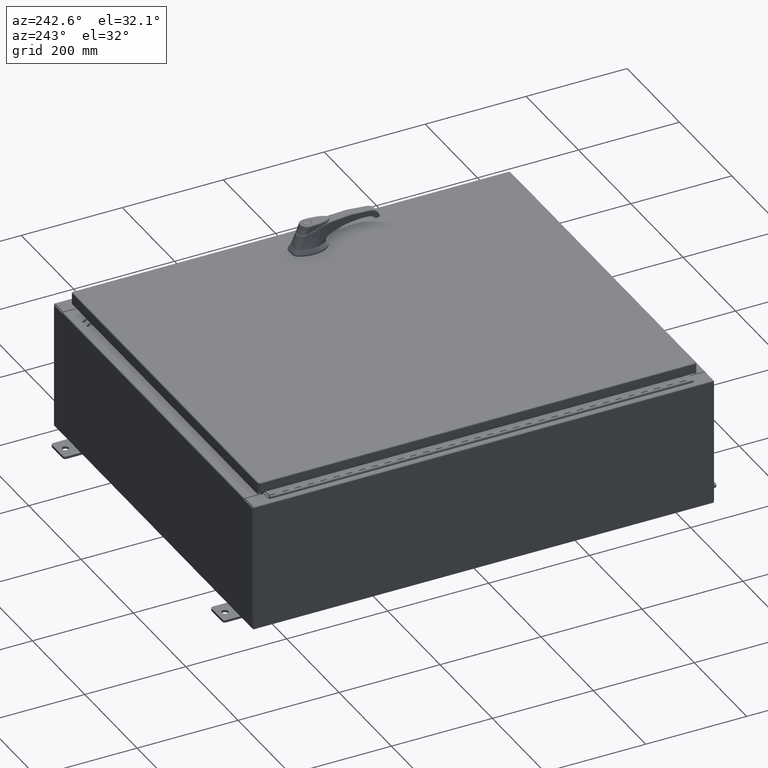
[diagram: clean part render]
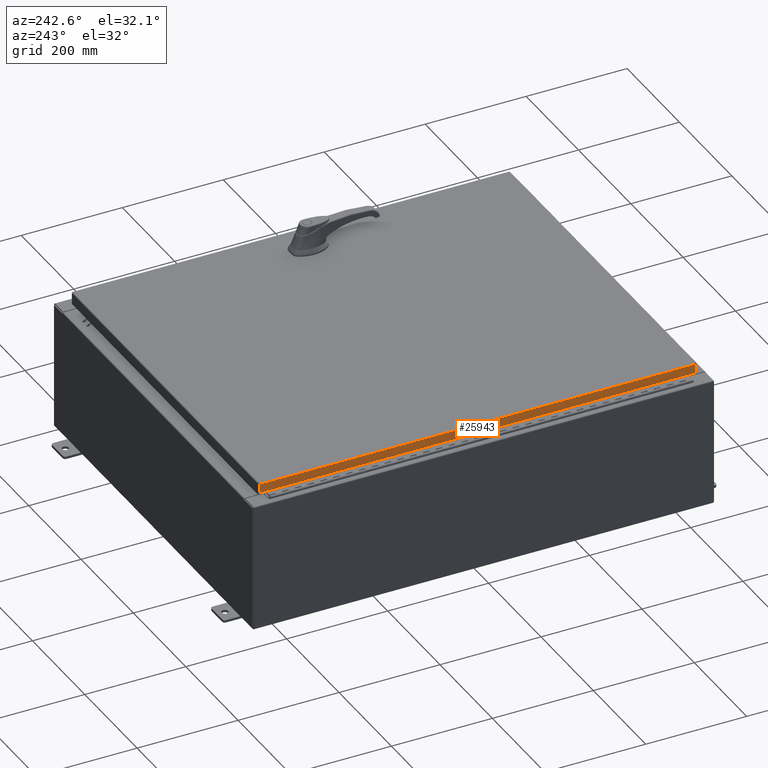
[diagram: same view with one face highlighted and labeled with its STEP entity id]
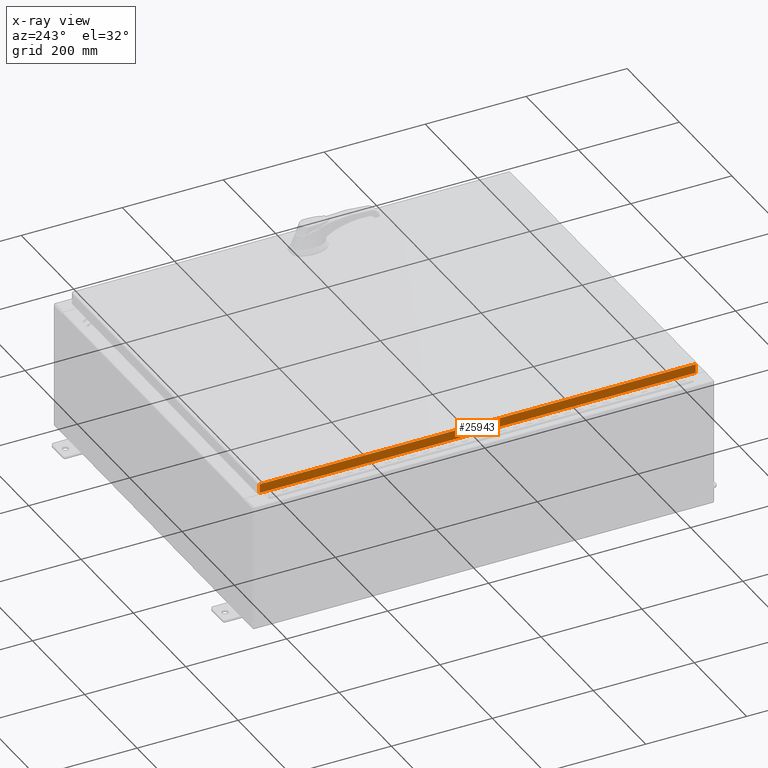
[diagram: x-ray of the same camera — body ghosted, the highlighted face saturated]
A machine part, auxiliary view. The second image highlights one B-rep face of the part: STEP entity #25943.
The next image is the same camera in x-ray: the body ghosted, the highlighted face saturated — about 0% of this face is hidden behind the body in this view.
In plain terms, the highlighted planar face has unit normal (1, 0, -0).
Its self-contained STEP definition (entity closure, byte-faithful):
#5107 = CARTESIAN_POINT ( 'NONE',  ( -14.07800000000000700, -17.00515786437626900, -0.08770000000000007000 ) ) ;
#10498 = EDGE_CURVE ( 'NONE', #19793, #105487, #74959, .T. ) ;
#12150 = VERTEX_POINT ( 'NONE', #85789 ) ;
#17518 = AXIS2_PLACEMENT_3D ( 'NONE', #79036, #31745, #98122 ) ;
#19793 = VERTEX_POINT ( 'NONE', #123061 ) ;
#22144 = FACE_OUTER_BOUND ( 'NONE', #58646, .T. ) ;
#24759 = ORIENTED_EDGE ( 'NONE', *, *, #62620, .F. ) ;
#25943 = ADVANCED_FACE ( 'NONE', ( #22144 ), #88593, .F. ) ;
#31745 = DIRECTION ( 'NONE',  ( 1.000000000000000000, 3.757920914826096500E-031, -3.034122441942816500E-015 ) ) ;
#35124 = ORIENTED_EDGE ( 'NONE', *, *, #60081, .F. ) ;
#35519 = EDGE_CURVE ( 'NONE', #12150, #105487, #61589, .T. ) ;
#42712 = DIRECTION ( 'NONE',  ( 3.757920914826097400E-031, -1.000000000000000000, -1.107764513432648300E-045 ) ) ;
#43323 = VERTEX_POINT ( 'NONE', #5107 ) ;
#43542 = CARTESIAN_POINT ( 'NONE',  ( -14.07800000000000700, -17.09400000000000100, -0.08770000000000004200 ) ) ;
#45710 = DIRECTION ( 'NONE',  ( -3.034122441942816500E-015, 6.982962677686265900E-015, -1.000000000000000000 ) ) ;
#51586 = DIRECTION ( 'NONE',  ( 4.379057701015054300E-047, 1.000000000000000000, 1.238552822680358400E-016 ) ) ;
#55300 = CARTESIAN_POINT ( 'NONE',  ( -14.07800000000000700, -17.00515786437626900, -0.07469999999999976700 ) ) ;
#56033 = VECTOR ( 'NONE', #45710, 39.37007874015748100 ) ;
#56399 = LINE ( 'NONE', #43542, #81562 ) ;
#58646 = EDGE_LOOP ( 'NONE', ( #35124, #110488, #105539, #24759 ) ) ;
#60081 = EDGE_CURVE ( 'NONE', #19793, #43323, #56399, .T. ) ;
#61589 = LINE ( 'NONE', #118009, #83796 ) ;
#62620 = EDGE_CURVE ( 'NONE', #43323, #12150, #106552, .T. ) ;
#74959 = LINE ( 'NONE', #97024, #119534 ) ;
#79036 = CARTESIAN_POINT ( 'NONE',  ( -14.07800000000000700, -5.290401063892181200E-030, 4.297518939368256700E-014 ) ) ;
#81562 = VECTOR ( 'NONE', #42712, 39.37007874015748100 ) ;
#83796 = VECTOR ( 'NONE', #51586, 39.37007874015748100 ) ;
#85789 = CARTESIAN_POINT ( 'NONE',  ( -14.07800000000000800, -17.00515786437626500, -0.7949999999999996000 ) ) ;
#87462 = DIRECTION ( 'NONE',  ( -3.034122441942816500E-015, 6.982962677686265900E-015, -1.000000000000000000 ) ) ;
#88593 = PLANE ( 'NONE',  #17518 ) ;
#97024 = CARTESIAN_POINT ( 'NONE',  ( -14.07800000000000700, 17.00515786437627200, 1.617215720887851800E-013 ) ) ;
#98122 = DIRECTION ( 'NONE',  ( -3.034122441942816500E-015, 0.0000000000000000000, -1.000000000000000000 ) ) ;
#105487 = VERTEX_POINT ( 'NONE', #122194 ) ;
#105539 = ORIENTED_EDGE ( 'NONE', *, *, #35519, .F. ) ;
#106552 = LINE ( 'NONE', #55300, #56033 ) ;
#110488 = ORIENTED_EDGE ( 'NONE', *, *, #10498, .T. ) ;
#118009 = CARTESIAN_POINT ( 'NONE',  ( -14.07800000000000800, -17.09400000000000100, -0.7949999999999997100 ) ) ;
#119534 = VECTOR ( 'NONE', #87462, 39.37007874015748100 ) ;
#122194 = CARTESIAN_POINT ( 'NONE',  ( -14.07800000000000800, 17.00515786437627600, -0.7949999999999954900 ) ) ;
#123061 = CARTESIAN_POINT ( 'NONE',  ( -14.07800000000000700, 17.00515786437627200, -0.08770000000000004200 ) ) ;